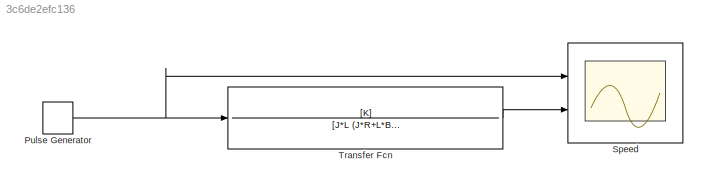
MODEL slx_3c6de2efc136
KIND model
CONFIG AbsTol = auto
CONFIG EnableMultiTasking = off
CONFIG FixedStep = 0.1
CONFIG MaxStep = auto
CONFIG MinStep = auto
CONFIG RelTol = 1e-3
CONFIG SampleTimeConstraint = Unconstrained
CONFIG SolverName = FixedStepAuto
CONFIG StartTime = 0.0
CONFIG StopTime = 10
WORKSPACE source: mxarray member
WORKSPACE B: Simulink.Parameter (value not decoded)
WORKSPACE J: Simulink.Parameter (value not decoded)
WORKSPACE K: Simulink.Parameter (value not decoded)
WORKSPACE L: Simulink.Parameter (value not decoded)
WORKSPACE R: Simulink.Parameter (value not decoded)
BLOCK [DiscretePulseGenerator] Pulse Generator
  Amplitude = 0.2
  Period = 20
  PhaseDelay = 10
  Ports = [0, 1]
  PulseWidth = 10
  SampleTime = 0.1
BLOCK [Scope] Speed
  Floating = off
  NumInputPorts = 2
  Ports = [2]
  ScopeSpecificationString = Simulink.scopes.TimeScopeBlockCfg('CurrentConfiguration', extmgr.ConfigurationSet(extmgr.Configuration('Core','General UI',true,'FigureColor',[1 1 1]),extmgr.Configuration('Core','Source UI',true),extmgr.Configuration('Sources','WiredSimulink',true),extmgr.Configuration('Visuals','Time Domain',true,'SerializedDisplays',{struct('MinYLimReal','-0.025','MaxYLimReal','0.225','YLabelReal','','MinYLimMa...<+2418ch>
BLOCK [TransferFcn] Transfer Fcn
  ContinuousStateAttributes = 'speed'
  Denominator = [J*L (J*R+L*B) B*R+K^2]
  Numerator = [K]
NET Pulse Generator:1 -> Speed:1, Transfer Fcn:1
LINE Transfer Fcn:1 -> Speed:2
note: NET lines group one-source signal fan-out (src -> all destinations, sorted); 1:1 wires keep LINE
